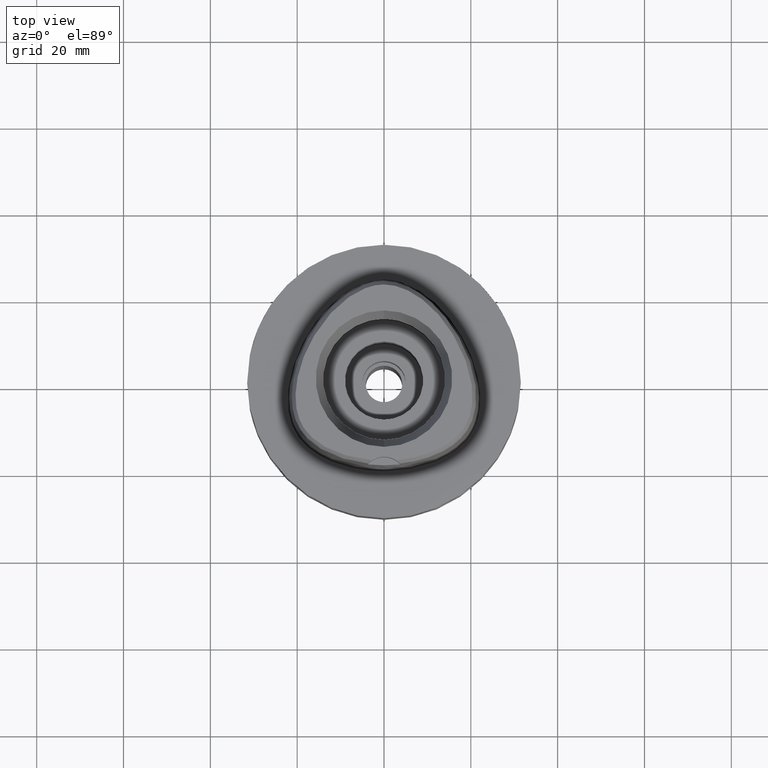
[diagram: clean part render]
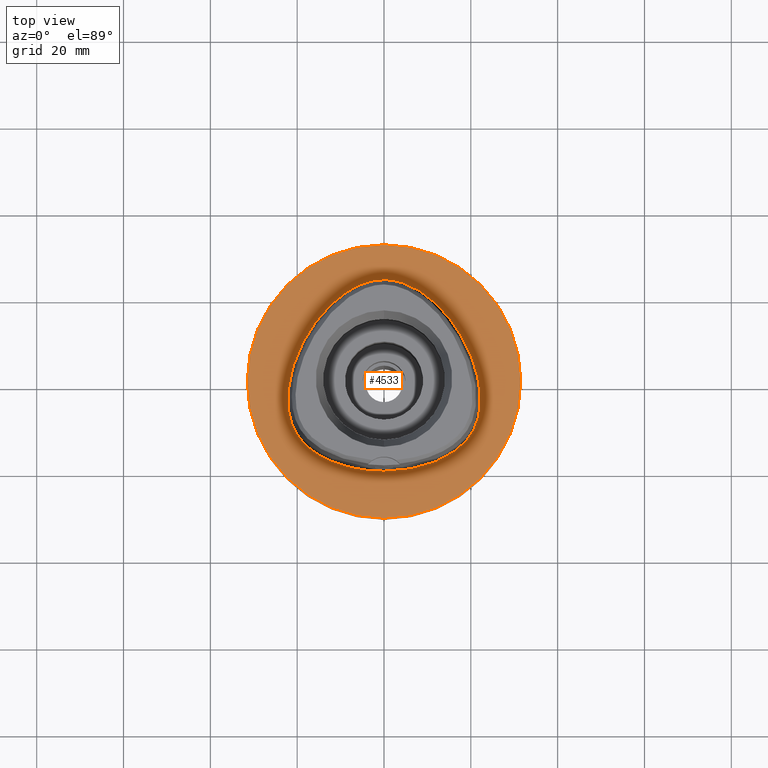
[diagram: same view with one face highlighted and labeled with its STEP entity id]
A machine part, top view. The second image highlights one B-rep face of the part: STEP entity #4533.
In plain terms, the highlighted planar face has unit normal (0, 0, -1).
Its self-contained STEP definition (entity closure, byte-faithful):
#24 = CARTESIAN_POINT ( 'NONE',  ( -19.64947365901922538, -12.82525390652753394, -1.892978319668198184E-08 ) ) ;
#204 = CARTESIAN_POINT ( 'NONE',  ( 0.0000000000000000000, 31.50000000000000000, 1.065814103639999922E-14 ) ) ;
#313 = VERTEX_POINT ( 'NONE', #2737 ) ;
#344 = DIRECTION ( 'NONE',  ( 0.0000000000000000000, 0.0000000000000000000, -1.000000000000000000 ) ) ;
#391 = CARTESIAN_POINT ( 'NONE',  ( -6.341471019296179179, -20.29812500047401969, -1.892978319668198184E-08 ) ) ;
#399 = CARTESIAN_POINT ( 'NONE',  ( 20.74942738438084078, 4.657187491201328022, 1.032185159528320809E-06 ) ) ;
#425 = CARTESIAN_POINT ( 'NONE',  ( -18.06826688568035522, 10.43171875023972994, -1.892978319668198184E-08 ) ) ;
#436 = VERTEX_POINT ( 'NONE', #4111 ) ;
#451 = CARTESIAN_POINT ( 'NONE',  ( -21.55524826054981347, -8.996025390760779672, -1.892978319668198184E-08 ) ) ;
#457 = CARTESIAN_POINT ( 'NONE',  ( 0.8548392404802069855, 23.47499997420170814, 1.032185159528320809E-06 ) ) ;
#734 = CARTESIAN_POINT ( 'NONE',  ( 5.200812825891000207E-11, 23.47499999999000053, 6.084022174946000468E-14 ) ) ;
#754 = DIRECTION ( 'NONE',  ( 0.0000000000000000000, 0.0000000000000000000, -1.000000000000000000 ) ) ;
#783 = DIRECTION ( 'NONE',  ( 0.0000000000000000000, -1.000000000000000000, 0.0000000000000000000 ) ) ;
#840 = VERTEX_POINT ( 'NONE', #734 ) ;
#881 = CARTESIAN_POINT ( 'NONE',  ( 20.93173249850192263, -10.60431639574129647, 1.032185159528320809E-06 ) ) ;
#900 = CARTESIAN_POINT ( 'NONE',  ( -22.05732874368715812, -6.847636718816936252, -1.892978319668198184E-08 ) ) ;
#1023 = AXIS2_PLACEMENT_3D ( 'NONE', #3131, #2728, #3993 ) ;
#1120 = VERTEX_POINT ( 'NONE', #204 ) ;
#1140 = CARTESIAN_POINT ( 'NONE',  ( 0.0000000000000000000, 1.285266815705000040E-14, 1.065814103639999922E-14 ) ) ;
#1222 = CARTESIAN_POINT ( 'NONE',  ( -9.636109381781001152E-12, -20.67499999999999716, 6.372680161347999694E-14 ) ) ;
#1241 = CARTESIAN_POINT ( 'NONE',  ( -18.56841065176766037, -14.16937988313905628, -1.892978319668198184E-08 ) ) ;
#1334 = CARTESIAN_POINT ( 'NONE',  ( 22.05732871757220437, -6.847636715063332602, 1.032185159528320809E-06 ) ) ;
#1721 = CARTESIAN_POINT ( 'NONE',  ( -9.636109381781001152E-12, -20.67499999999999716, 6.372680161347999694E-14 ) ) ;
#1746 = CARTESIAN_POINT ( 'NONE',  ( -11.23259756743798299, -18.89324218795642452, -1.892978319668198184E-08 ) ) ;
#1768 = EDGE_LOOP ( 'NONE', ( #3064, #4213 ) ) ;
#2081 = CARTESIAN_POINT ( 'NONE',  ( 5.200812825891000207E-11, 23.47499999999000053, 6.084022174946000468E-14 ) ) ;
#2089 = CARTESIAN_POINT ( 'NONE',  ( 2.113823671533636706, -20.67499997419690416, 1.032185159528320809E-06 ) ) ;
#2119 = CARTESIAN_POINT ( 'NONE',  ( 20.34961796318238569, -11.74885740894897879, 1.032185159528320809E-06 ) ) ;
#2140 = CARTESIAN_POINT ( 'NONE',  ( -22.24453907901853356, -4.100468749997566498, -1.892978319668198184E-08 ) ) ;
#2174 = CARTESIAN_POINT ( 'NONE',  ( 11.23259755841533192, -18.89324216311125326, 1.032185159528320809E-06 ) ) ;
#2201 = ORIENTED_EDGE ( 'NONE', *, *, #3624, .F. ) ;
#2476 = FACE_BOUND ( 'NONE', #3955, .T. ) ;
#2548 = CARTESIAN_POINT ( 'NONE',  ( 6.341471014626497649, -20.29812497446113184, 1.032185159528320809E-06 ) ) ;
#2572 = CARTESIAN_POINT ( 'NONE',  ( -14.67337964443493270, -17.21410156290902549, -1.892978319668198184E-08 ) ) ;
#2728 = DIRECTION ( 'NONE',  ( 0.0000000000000000000, 0.0000000000000000000, -1.000000000000000000 ) ) ;
#2729 = CIRCLE ( 'NONE', #1023, 31.50000000000000000 ) ;
#2737 = CARTESIAN_POINT ( 'NONE',  ( 0.0000000000000000000, -31.50000000000000000, 1.065814103639999922E-14 ) ) ;
#2828 = DIRECTION ( 'NONE',  ( 0.0000000000000000000, -1.000000000000000000, 0.0000000000000000000 ) ) ;
#2956 = CARTESIAN_POINT ( 'NONE',  ( -20.74942740924560880, 4.657187500160971716, -1.892978319668198184E-08 ) ) ;
#2960 = B_SPLINE_CURVE_WITH_KNOTS ( 'NONE', 3,
 ( #1222, #2089, #2548, #2174, #3771, #5189, #3439, #4704, #2119, #881, #3801, #1334, #3023, #4309, #399, #2962, #5521, #3834, #3049, #3386, #4736, #457, #4678 ),
 .UNSPECIFIED., .F., .F.,
 ( 4, 1, 1, 1, 1, 1, 1, 1, 1, 1, 1, 1, 1, 1, 1, 1, 1, 1, 1, 1, 4 ),
 ( 0.0000000000000000000, 0.08333333333342000937, 0.1666666666667000196, 0.2083333333333000081, 0.2500000000000000000, 0.2916666666666999919, 0.3125000000000000000, 0.3333333333333000081, 0.3541666666666999919, 0.3750000000000000000, 0.4166666666666000163, 0.4583333333332000326, 0.4999999999998999689, 0.5833333333332000326, 0.6666666666664999852, 0.7499999999998000488, 0.8333333333329999704, 0.8749999999997000177, 0.9166666666664000651, 0.9583333333329999704, 1.000000000000000000 ),
 .UNSPECIFIED. ) ;
#2962 = CARTESIAN_POINT ( 'NONE',  ( 18.06826686280620109, 10.43171873704028840, 1.032185159528320809E-06 ) ) ;
#3016 = CARTESIAN_POINT ( 'NONE',  ( -20.34961798598483540, -11.74885742210724615, -1.892978319668198184E-08 ) ) ;
#3023 = CARTESIAN_POINT ( 'NONE',  ( 22.24453905267053244, -4.100468750151459396, 1.032185159528320809E-06 ) ) ;
#3043 = CARTESIAN_POINT ( 'NONE',  ( -7.571159434591257842, 21.31457031291201076, -1.892978319668198184E-08 ) ) ;
#3049 = CARTESIAN_POINT ( 'NONE',  ( 7.571159421277521062, 21.31457029015837534, 1.032185159528320809E-06 ) ) ;
#3064 = ORIENTED_EDGE ( 'NONE', *, *, #3740, .F. ) ;
#3131 = CARTESIAN_POINT ( 'NONE',  ( 0.0000000000000000000, 1.285266815705000040E-14, 1.065814103639999922E-14 ) ) ;
#3213 = B_SPLINE_CURVE_WITH_KNOTS ( 'NONE', 3,
 ( #2081, #3550, #3911, #4647, #3043, #3462, #4216, #425, #2956, #3406, #2140, #900, #451, #5150, #3016, #24, #1241, #3852, #2572, #1746, #391, #5094, #1721 ),
 .UNSPECIFIED., .F., .F.,
 ( 4, 1, 1, 1, 1, 1, 1, 1, 1, 1, 1, 1, 1, 1, 1, 1, 1, 1, 1, 1, 4 ),
 ( 0.0000000000000000000, 0.04166666666747000092, 0.08333333333408000920, 0.1250000000006999956, 0.1666666666674000152, 0.2500000000006000200, 0.3333333333337999971, 0.4166666666671000052, 0.5000000000002999823, 0.5416666666670000296, 0.5833333333335000148, 0.6250000000001999512, 0.6458333333333999837, 0.6666666666667999674, 0.6875000000001000311, 0.7083333333333999837, 0.7500000000000000000, 0.7916666666667000474, 0.8333333333332000326, 0.9166666666666000163, 1.000000000000000000 ),
 .UNSPECIFIED. ) ;
#3386 = CARTESIAN_POINT ( 'NONE',  ( 5.098437007652592001, 22.52602536656554477, 1.032185159528320809E-06 ) ) ;
#3406 = CARTESIAN_POINT ( 'NONE',  ( -21.97832647833858388, -0.2810937499172421750, -1.892978319668198184E-08 ) ) ;
#3439 = CARTESIAN_POINT ( 'NONE',  ( 18.56841063261549252, -14.16937986499903879, 1.032185159528320809E-06 ) ) ;
#3462 = CARTESIAN_POINT ( 'NONE',  ( -10.74572891089963811, 19.17433593786093482, -1.892978319668198184E-08 ) ) ;
#3550 = CARTESIAN_POINT ( 'NONE',  ( -0.8548392423352245695, 23.47500000047596558, -1.892978319668198184E-08 ) ) ;
#3624 = EDGE_CURVE ( 'NONE', #436, #840, #2960, .T. ) ;
#3713 = ORIENTED_EDGE ( 'NONE', *, *, #5308, .F. ) ;
#3740 = EDGE_CURVE ( 'NONE', #1120, #313, #2729, .T. ) ;
#3771 = CARTESIAN_POINT ( 'NONE',  ( 14.67337963138376544, -17.21410154000281878, 1.032185159528320809E-06 ) ) ;
#3801 = CARTESIAN_POINT ( 'NONE',  ( 21.55524823527465017, -8.996025383247182816, 1.032185159528320809E-06 ) ) ;
#3812 = AXIS2_PLACEMENT_3D ( 'NONE', #4179, #754, #783 ) ;
#3834 = CARTESIAN_POINT ( 'NONE',  ( 10.74572889390089081, 19.17433591762865674, 1.032185159528320809E-06 ) ) ;
#3852 = CARTESIAN_POINT ( 'NONE',  ( -16.95889172623262198, -15.67838867224359589, -1.892978319668198184E-08 ) ) ;
#3911 = CARTESIAN_POINT ( 'NONE',  ( -2.564517727054794527, 23.29328125046851028, -1.892978319668198184E-08 ) ) ;
#3955 = EDGE_LOOP ( 'NONE', ( #3713, #2201 ) ) ;
#3993 = DIRECTION ( 'NONE',  ( 0.0000000000000000000, 1.000000000000000000, 0.0000000000000000000 ) ) ;
#4111 = CARTESIAN_POINT ( 'NONE',  ( -9.636109381781001152E-12, -20.67499999999999716, 6.372680161347999694E-14 ) ) ;
#4178 = CIRCLE ( 'NONE', #4536, 31.50000000000000000 ) ;
#4179 = CARTESIAN_POINT ( 'NONE',  ( 0.0000000000000000000, 1.224646799146999965E-14, 0.0000000000000000000 ) ) ;
#4213 = ORIENTED_EDGE ( 'NONE', *, *, #4837, .F. ) ;
#4216 = CARTESIAN_POINT ( 'NONE',  ( -14.40795638994264216, 15.64093750030727215, -1.892978319668198184E-08 ) ) ;
#4309 = CARTESIAN_POINT ( 'NONE',  ( 21.97832645231721926, -0.2810937545144449601, 1.032185159528320809E-06 ) ) ;
#4533 = ADVANCED_FACE ( 'NONE', ( #5359, #2476 ), #5450, .F. ) ;
#4536 = AXIS2_PLACEMENT_3D ( 'NONE', #1140, #344, #2828 ) ;
#4647 = CARTESIAN_POINT ( 'NONE',  ( -5.098437017459870546, 22.52602539107216728, -1.892978319668198184E-08 ) ) ;
#4678 = CARTESIAN_POINT ( 'NONE',  ( 5.200812825891000207E-11, 23.47499999999000053, 6.084022174946000468E-14 ) ) ;
#4704 = CARTESIAN_POINT ( 'NONE',  ( 19.64947363772811784, -12.82525389106007552, 1.032185159528320809E-06 ) ) ;
#4736 = CARTESIAN_POINT ( 'NONE',  ( 2.564517721651746296, 23.29328122458903394, 1.032185159528320809E-06 ) ) ;
#4837 = EDGE_CURVE ( 'NONE', #313, #1120, #4178, .T. ) ;
#5094 = CARTESIAN_POINT ( 'NONE',  ( -2.113823673092884547, -20.67500000047243702, -1.892978319668198184E-08 ) ) ;
#5150 = CARTESIAN_POINT ( 'NONE',  ( -20.93173252255057193, -10.60431640644312168, -1.892978319668198184E-08 ) ) ;
#5189 = CARTESIAN_POINT ( 'NONE',  ( 16.95889170991566175, -15.67838865150461558, 1.032185159528320809E-06 ) ) ;
#5308 = EDGE_CURVE ( 'NONE', #840, #436, #3213, .T. ) ;
#5359 = FACE_OUTER_BOUND ( 'NONE', #1768, .T. ) ;
#5450 = PLANE ( 'NONE',  #3812 ) ;
#5521 = CARTESIAN_POINT ( 'NONE',  ( 14.40795636975451366, 15.64093748325912436, 1.032185159528320809E-06 ) ) ;